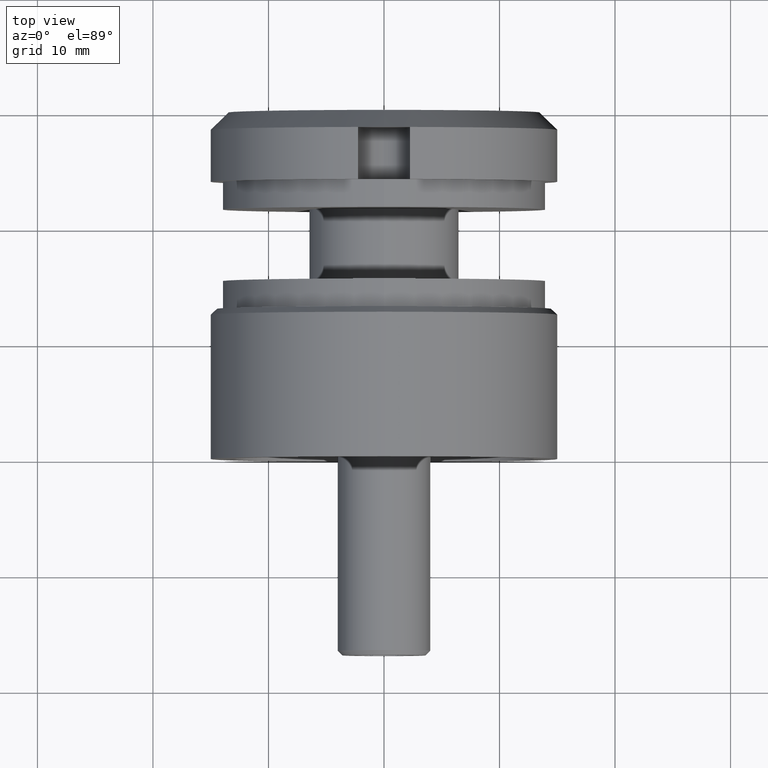
[diagram: clean part render]
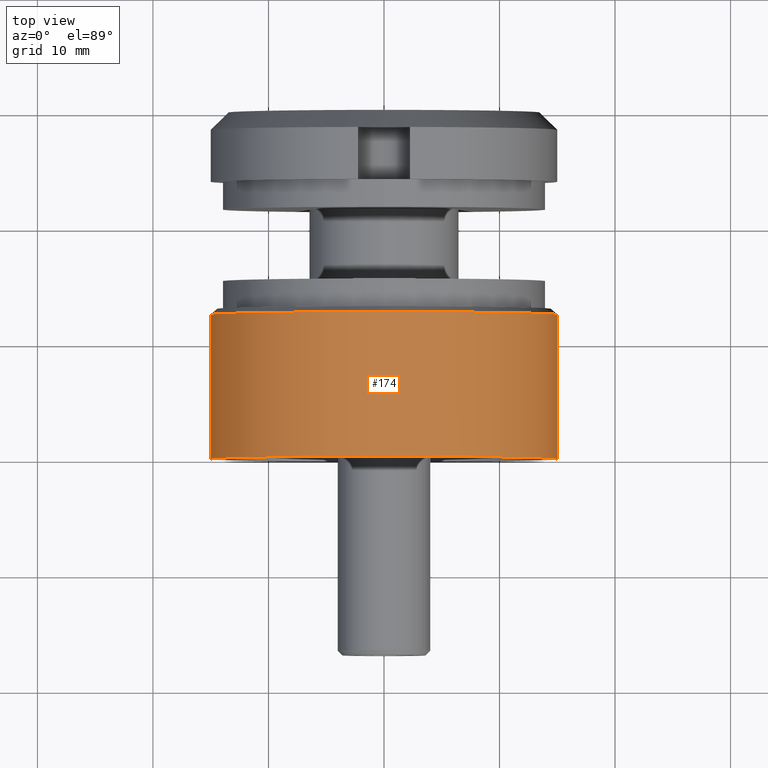
[diagram: same view with one face highlighted and labeled with its STEP entity id]
A machine part, top view. The second image highlights one B-rep face of the part: STEP entity #174.
In plain terms, the highlighted cylindrical surface (partial cylindrical patch) has radius 15 mm, axis along (-0, -1, -0).
Its self-contained STEP definition (entity closure, byte-faithful):
#48 = CARTESIAN_POINT ( 'NONE',  ( -2.571758278209441267E-15, 12.50000000000000000, 0.000000000000000000 ) ) ;
#174 = ADVANCED_FACE ( 'NONE', ( #5522 ), #6227, .T. ) ;
#431 = VERTEX_POINT ( 'NONE', #8180 ) ;
#734 = EDGE_CURVE ( 'NONE', #2013, #13672, #3833, .T. ) ;
#824 = EDGE_CURVE ( 'NONE', #13672, #431, #11950, .T. ) ;
#1665 = DIRECTION ( 'NONE',  ( 0.000000000000000000, 0.000000000000000000, 1.000000000000000000 ) ) ;
#1888 = AXIS2_PLACEMENT_3D ( 'NONE', #48, #6932, #7922 ) ;
#2013 = VERTEX_POINT ( 'NONE', #6152 ) ;
#2056 = VECTOR ( 'NONE', #6705, 1000.000000000000000 ) ;
#2098 = CARTESIAN_POINT ( 'NONE',  ( -15.00000000000000355, 2.476195642783588203E-30, 1.836970198721029983E-15 ) ) ;
#2687 = CARTESIAN_POINT ( 'NONE',  ( -2.571758278209441267E-15, 12.50000000000000000, 0.000000000000000000 ) ) ;
#2856 = VERTEX_POINT ( 'NONE', #10858 ) ;
#3146 = EDGE_LOOP ( 'NONE', ( #4845, #4890, #7687, #14328, #11382 ) ) ;
#3635 = AXIS2_PLACEMENT_3D ( 'NONE', #12635, #10335, #11517 ) ;
#3833 = CIRCLE ( 'NONE', #1888, 15.00000000000000178 ) ;
#3920 = EDGE_CURVE ( 'NONE', #2856, #5221, #11824, .T. ) ;
#4373 = CARTESIAN_POINT ( 'NONE',  ( 15.00000000000000000, 10.49999999999999822, 0.000000000000000000 ) ) ;
#4629 = VECTOR ( 'NONE', #5591, 1000.000000000000000 ) ;
#4845 = ORIENTED_EDGE ( 'NONE', *, *, #734, .T. ) ;
#4890 = ORIENTED_EDGE ( 'NONE', *, *, #824, .T. ) ;
#5182 = AXIS2_PLACEMENT_3D ( 'NONE', #2687, #11738, #1665 ) ;
#5221 = VERTEX_POINT ( 'NONE', #2098 ) ;
#5522 = FACE_OUTER_BOUND ( 'NONE', #3146, .T. ) ;
#5591 = DIRECTION ( 'NONE',  ( -1.650797095189058802E-31, -1.000000000000000000, -0.000000000000000000 ) ) ;
#6152 = CARTESIAN_POINT ( 'NONE',  ( 15.00000000000000000, 12.50000000000000000, 0.000000000000000000 ) ) ;
#6227 = CYLINDRICAL_SURFACE ( 'NONE', #3635, 15.00000000000000178 ) ;
#6331 = CARTESIAN_POINT ( 'NONE',  ( -7.347880794884114806E-16, 12.50000000000000000, 15.00000000000000178 ) ) ;
#6625 = AXIS2_PLACEMENT_3D ( 'NONE', #11807, #9607, #10743 ) ;
#6705 = DIRECTION ( 'NONE',  ( -1.650797095189058802E-31, -1.000000000000000000, -0.000000000000000000 ) ) ;
#6932 = DIRECTION ( 'NONE',  ( -0.000000000000000000, -1.000000000000000000, -0.000000000000000000 ) ) ;
#7687 = ORIENTED_EDGE ( 'NONE', *, *, #11863, .T. ) ;
#7922 = DIRECTION ( 'NONE',  ( -8.881784197001251337E-16, 0.000000000000000000, 1.000000000000000000 ) ) ;
#8180 = CARTESIAN_POINT ( 'NONE',  ( -15.00000000000000355, 12.50000000000000000, 1.836970198721029983E-15 ) ) ;
#8800 = EDGE_CURVE ( 'NONE', #2013, #2856, #11147, .T. ) ;
#9607 = DIRECTION ( 'NONE',  ( -1.650797095189058802E-31, -1.000000000000000000, -0.000000000000000000 ) ) ;
#10046 = CARTESIAN_POINT ( 'NONE',  ( -15.00000000000000355, 10.49999999999999822, 1.836970198721029983E-15 ) ) ;
#10335 = DIRECTION ( 'NONE',  ( -1.650797095189058802E-31, -1.000000000000000000, -0.000000000000000000 ) ) ;
#10743 = DIRECTION ( 'NONE',  ( 1.000000000000000000, -1.650797095189058583E-31, 0.000000000000000000 ) ) ;
#10858 = CARTESIAN_POINT ( 'NONE',  ( 15.00000000000000000, -2.476195642783588203E-30, 0.000000000000000000 ) ) ;
#11147 = LINE ( 'NONE', #4373, #4629 ) ;
#11382 = ORIENTED_EDGE ( 'NONE', *, *, #8800, .F. ) ;
#11517 = DIRECTION ( 'NONE',  ( 1.000000000000000000, 0.000000000000000000, 0.000000000000000000 ) ) ;
#11738 = DIRECTION ( 'NONE',  ( -0.000000000000000000, -1.000000000000000000, -0.000000000000000000 ) ) ;
#11807 = CARTESIAN_POINT ( 'NONE',  ( -2.571758278209443239E-15, 0.000000000000000000, 0.000000000000000000 ) ) ;
#11824 = CIRCLE ( 'NONE', #6625, 15.00000000000000178 ) ;
#11863 = EDGE_CURVE ( 'NONE', #431, #5221, #12760, .T. ) ;
#11950 = CIRCLE ( 'NONE', #5182, 15.00000000000000178 ) ;
#12635 = CARTESIAN_POINT ( 'NONE',  ( -2.571758278209441661E-15, 10.49999999999999822, 0.000000000000000000 ) ) ;
#12760 = LINE ( 'NONE', #10046, #2056 ) ;
#13672 = VERTEX_POINT ( 'NONE', #6331 ) ;
#14328 = ORIENTED_EDGE ( 'NONE', *, *, #3920, .F. ) ;